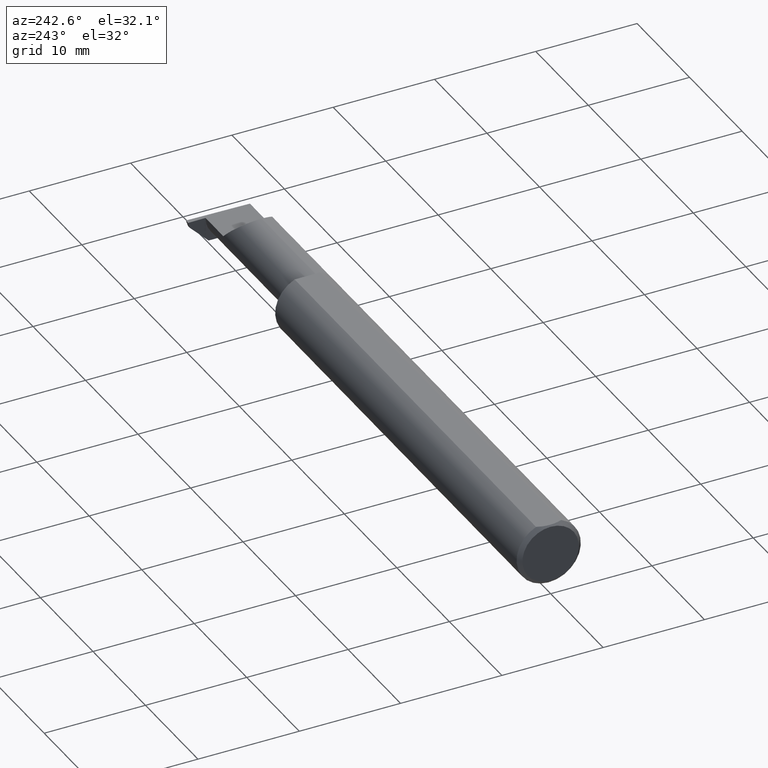
[diagram: clean part render]
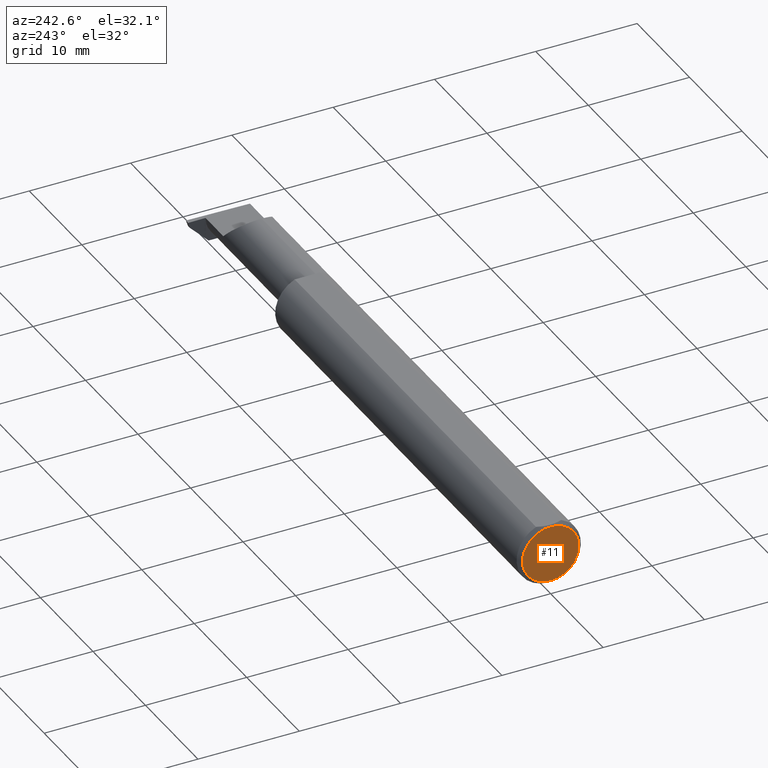
[diagram: same view with one face highlighted and labeled with its STEP entity id]
A machine part, auxiliary view. The second image highlights one B-rep face of the part: STEP entity #11.
In plain terms, the highlighted planar face has unit normal (1, 0, 0).
Its self-contained STEP definition (entity closure, byte-faithful):
#11 = ADVANCED_FACE ( 'NONE', ( #70 ), #68, .F. ) ;
#52 = CIRCLE ( 'NONE', #256, 0.1098500000000000032 ) ;
#68 = PLANE ( 'NONE',  #677 ) ;
#70 = FACE_OUTER_BOUND ( 'NONE', #592, .T. ) ;
#95 = CARTESIAN_POINT ( 'NONE',  ( 0.000000000000000000, 0.000000000000000000, 0.000000000000000000 ) ) ;
#132 = EDGE_CURVE ( 'NONE', #575, #277, #52, .T. ) ;
#219 = CARTESIAN_POINT ( 'NONE',  ( 0.000000000000000000, 0.000000000000000000, -0.1098500000000000032 ) ) ;
#246 = DIRECTION ( 'NONE',  ( 0.000000000000000000, 0.000000000000000000, 1.000000000000000000 ) ) ;
#256 = AXIS2_PLACEMENT_3D ( 'NONE', #95, #333, #586 ) ;
#277 = VERTEX_POINT ( 'NONE', #711 ) ;
#303 = CARTESIAN_POINT ( 'NONE',  ( 0.000000000000000000, 0.000000000000000000, 0.000000000000000000 ) ) ;
#306 = DIRECTION ( 'NONE',  ( 0.000000000000000000, 0.000000000000000000, -1.000000000000000000 ) ) ;
#309 = DIRECTION ( 'NONE',  ( -1.000000000000000000, -0.000000000000000000, -0.000000000000000000 ) ) ;
#316 = EDGE_CURVE ( 'NONE', #277, #575, #430, .T. ) ;
#333 = DIRECTION ( 'NONE',  ( -1.000000000000000000, -0.000000000000000000, -0.000000000000000000 ) ) ;
#430 = CIRCLE ( 'NONE', #627, 0.1098500000000000032 ) ;
#558 = DIRECTION ( 'NONE',  ( 1.000000000000000000, 0.000000000000000000, 0.000000000000000000 ) ) ;
#568 = ORIENTED_EDGE ( 'NONE', *, *, #132, .T. ) ;
#575 = VERTEX_POINT ( 'NONE', #219 ) ;
#586 = DIRECTION ( 'NONE',  ( 0.000000000000000000, 0.000000000000000000, 1.000000000000000000 ) ) ;
#592 = EDGE_LOOP ( 'NONE', ( #568, #735 ) ) ;
#627 = AXIS2_PLACEMENT_3D ( 'NONE', #690, #309, #246 ) ;
#677 = AXIS2_PLACEMENT_3D ( 'NONE', #303, #558, #306 ) ;
#690 = CARTESIAN_POINT ( 'NONE',  ( 0.000000000000000000, 0.000000000000000000, 0.000000000000000000 ) ) ;
#711 = CARTESIAN_POINT ( 'NONE',  ( 0.000000000000000000, 1.437123018799419134E-17, 0.1098500000000000032 ) ) ;
#735 = ORIENTED_EDGE ( 'NONE', *, *, #316, .T. ) ;